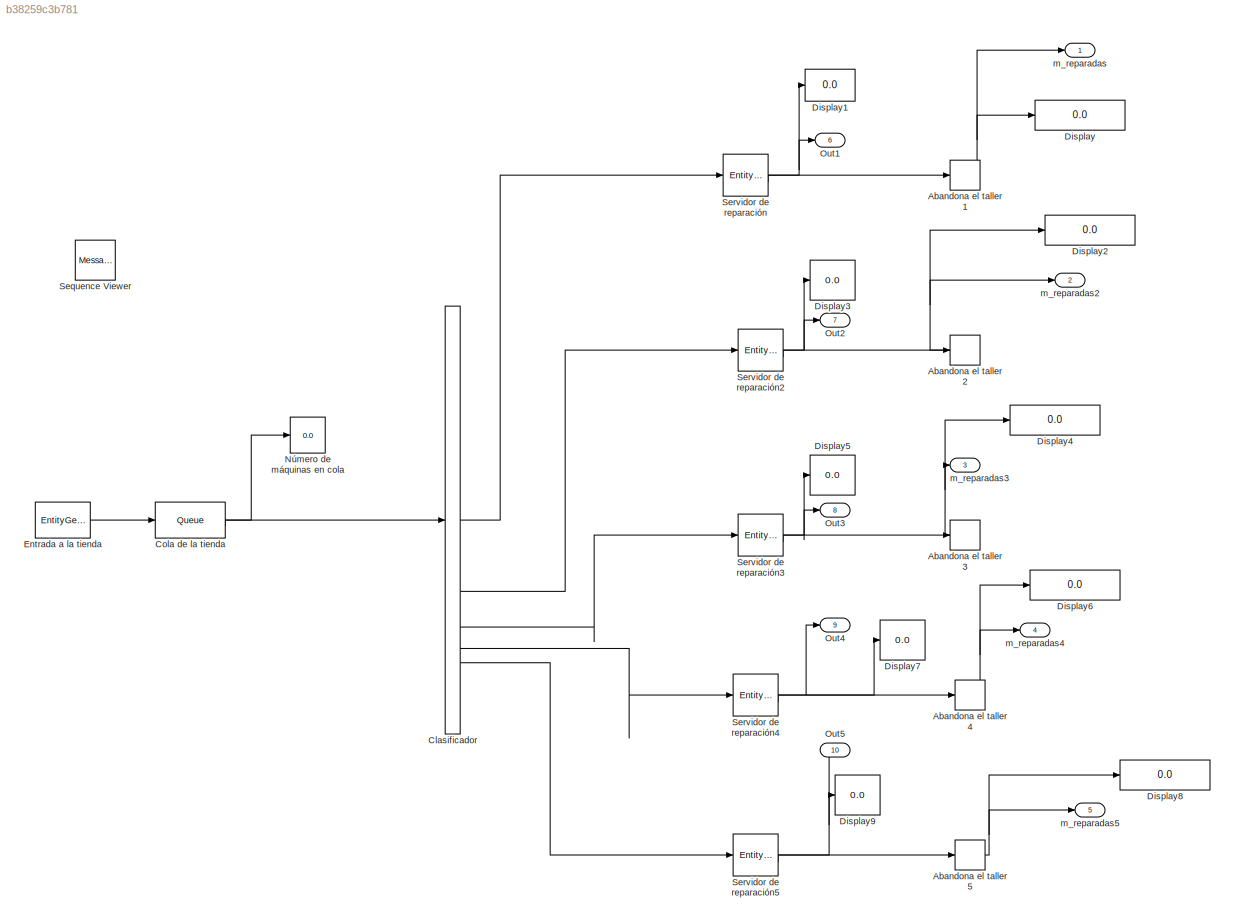
MODEL slx_b38259c3b781
KIND model
CONFIG AbsTol = auto
CONFIG EnableMultiTasking = off
CONFIG FixedStep = 1
CONFIG MaxStep = auto
CONFIG MinStep = auto
CONFIG RelTol = 1e-3
CONFIG SampleTimeConstraint = Unconstrained
CONFIG SolverName = ode45
CONFIG StartTime = 0
CONFIG StopTime = 30
BLOCK [EntityTerminator] Abandona el taller 1
  InputPortMap = u0
  InputPortMessageModes = m
  NumberEntitiesArrived = on
  OutputPortMap = o0
BLOCK [EntityTerminator] Abandona el taller 2
  InputPortMap = u0
  InputPortMessageModes = m
  NumberEntitiesArrived = on
  OutputPortMap = o0
BLOCK [EntityTerminator] Abandona el taller 3
  InputPortMap = u0
  InputPortMessageModes = m
  NumberEntitiesArrived = on
  OutputPortMap = o0
BLOCK [EntityTerminator] Abandona el taller 4
  InputPortMap = u0
  InputPortMessageModes = m
  NumberEntitiesArrived = on
  OutputPortMap = o0
BLOCK [EntityTerminator] Abandona el taller 5
  InputPortMap = u0
  InputPortMessageModes = m
  NumberEntitiesArrived = on
  OutputPortMap = o0
BLOCK [EntityOutputSwitch] Clasificador
  InputPortMap = u1
  InputPortMessageModes = m
  NumberOutputPorts = 5
  OutputPortMap = o0,o1,o2,o3,o4
  OutputPortMessageModes = m,m,m,m,m
  SwitchAttributeName = MaquinaTipo
  SwitchingCriterion = From attribute
BLOCK [Queue] Cola de la tienda
  Capacity = 10
  EntryAction = entity.MaquinaTipo = randi([1,5]);
  InputPortMap = u0
  InputPortMessageModes = m
  NumberEntitiesInBlock = on
  OutputPortMap = o1,o5
  OutputPortMessageModes = n,m
BLOCK [Display] Display
  Decimation = 1
BLOCK [Display] Display1
  Decimation = 1
BLOCK [Display] Display2
  Decimation = 1
BLOCK [Display] Display3
  Decimation = 1
BLOCK [Display] Display4
  Decimation = 1
BLOCK [Display] Display5
  Decimation = 1
BLOCK [Display] Display6
  Decimation = 1
BLOCK [Display] Display7
  Decimation = 1
BLOCK [Display] Display8
  Decimation = 1
BLOCK [Display] Display9
  Decimation = 1
BLOCK [EntityGenerator] Entrada a la tienda
  AttributeName = MaquinaTipo
  EntityType = Structured
  EntityTypeName = Entity
  GenerateEntityAtSimulationStart = off
  IntergenerationTimeAction = % Distribucion de poisson con media 2\ndt = poissrnd(2);
  OutputPortMap = o3
  OutputPortMessageModes = m
  TimeSource = MATLAB action
BLOCK [Display] Número de máquinas en cola
  Decimation = 1
BLOCK [Outport] Out1
  Port = 6
BLOCK [Outport] Out2
  Port = 7
BLOCK [Outport] Out3
  Port = 8
BLOCK [Outport] Out4
  Port = 9
BLOCK [Outport] Out5
  Port = 10
BLOCK [MessageViewer] Sequence Viewer
  History = 1000
  SavedRootId = #
BLOCK [EntityServer] Servidor de reparación
  AverageWait = on
  Capacity = 1
  InputPortMap = u2
  InputPortMessageModes = m
  OutputPortMap = o4,o9
  OutputPortMessageModes = n,m
  ServiceTimeAction = % Distribucion de poisson con media 1,2,3,4 o 5 \n% Dependiendo del tipo de máquina\ndt = poissrnd(entity.MaquinaTipo);
  ServiceTimeSource = MATLAB action
BLOCK [EntityServer] Servidor de reparación2
  AverageWait = on
  Capacity = 1
  InputPortMap = u2
  InputPortMessageModes = m
  OutputPortMap = o4,o9
  OutputPortMessageModes = n,m
  ServiceTimeAction = % Distribucion de poisson con media 1,2,3,4 o 5 \n% Dependiendo del tipo de máquina\ndt = poissrnd(entity.MaquinaTipo);
  ServiceTimeSource = MATLAB action
BLOCK [EntityServer] Servidor de reparación3
  AverageWait = on
  Capacity = 1
  InputPortMap = u2
  InputPortMessageModes = m
  OutputPortMap = o4,o9
  OutputPortMessageModes = n,m
  ServiceTimeAction = % Distribucion de poisson con media 1,2,3,4 o 5 \n% Dependiendo del tipo de máquina\ndt = poissrnd(entity.MaquinaTipo);
  ServiceTimeSource = MATLAB action
BLOCK [EntityServer] Servidor de reparación4
  AverageWait = on
  Capacity = 1
  InputPortMap = u2
  InputPortMessageModes = m
  OutputPortMap = o4,o9
  OutputPortMessageModes = n,m
  ServiceTimeAction = % Distribucion de poisson con media 1,2,3,4 o 5 \n% Dependiendo del tipo de máquina\ndt = poissrnd(entity.MaquinaTipo);
  ServiceTimeSource = MATLAB action
BLOCK [EntityServer] Servidor de reparación5
  AverageWait = on
  Capacity = 1
  InputPortMap = u2
  InputPortMessageModes = m
  OutputPortMap = o4,o9
  OutputPortMessageModes = n,m
  ServiceTimeAction = % Distribucion de poisson con media 1,2,3,4 o 5 \n% Dependiendo del tipo de máquina\ndt = poissrnd(entity.MaquinaTipo);
  ServiceTimeSource = MATLAB action
BLOCK [Outport] m_reparadas
BLOCK [Outport] m_reparadas2
  Port = 2
BLOCK [Outport] m_reparadas3
  Port = 3
BLOCK [Outport] m_reparadas4
  Port = 4
BLOCK [Outport] m_reparadas5
  Port = 5
NET Abandona el taller 1:1 -> Display:1, m_reparadas:1
NET Abandona el taller 2:1 -> Display2:1, m_reparadas2:1
NET Abandona el taller 3:1 -> Display4:1, m_reparadas3:1
NET Abandona el taller 4:1 -> Display6:1, m_reparadas4:1
NET Abandona el taller 5:1 -> Display8:1, m_reparadas5:1
LINE Clasificador:1 -> Servidor de reparación:1
LINE Clasificador:2 -> Servidor de reparación2:1
LINE Clasificador:3 -> Servidor de reparación3:1
LINE Clasificador:4 -> Servidor de reparación4:1
LINE Clasificador:5 -> Servidor de reparación5:1
LINE Cola de la tienda:1 -> Número de máquinas en cola:1
LINE Cola de la tienda:2 -> Clasificador:1
LINE Entrada a la tienda:1 -> Cola de la tienda:1
NET Servidor de reparación2:1 -> Display3:1, Out2:1
LINE Servidor de reparación2:2 -> Abandona el taller 2:1
NET Servidor de reparación3:1 -> Display5:1, Out3:1
LINE Servidor de reparación3:2 -> Abandona el taller 3:1
NET Servidor de reparación4:1 -> Display7:1, Out4:1
LINE Servidor de reparación4:2 -> Abandona el taller 4:1
NET Servidor de reparación5:1 -> Display9:1, Out5:1
LINE Servidor de reparación5:2 -> Abandona el taller 5:1
NET Servidor de reparación:1 -> Display1:1, Out1:1
LINE Servidor de reparación:2 -> Abandona el taller 1:1
note: NET lines group one-source signal fan-out (src -> all destinations, sorted); 1:1 wires keep LINE
